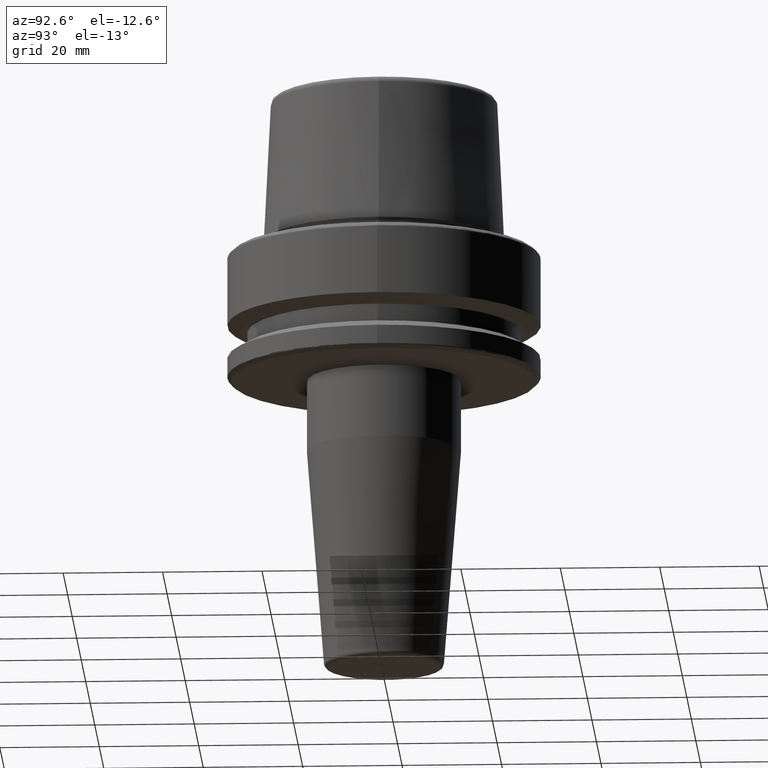
[diagram: clean part render]
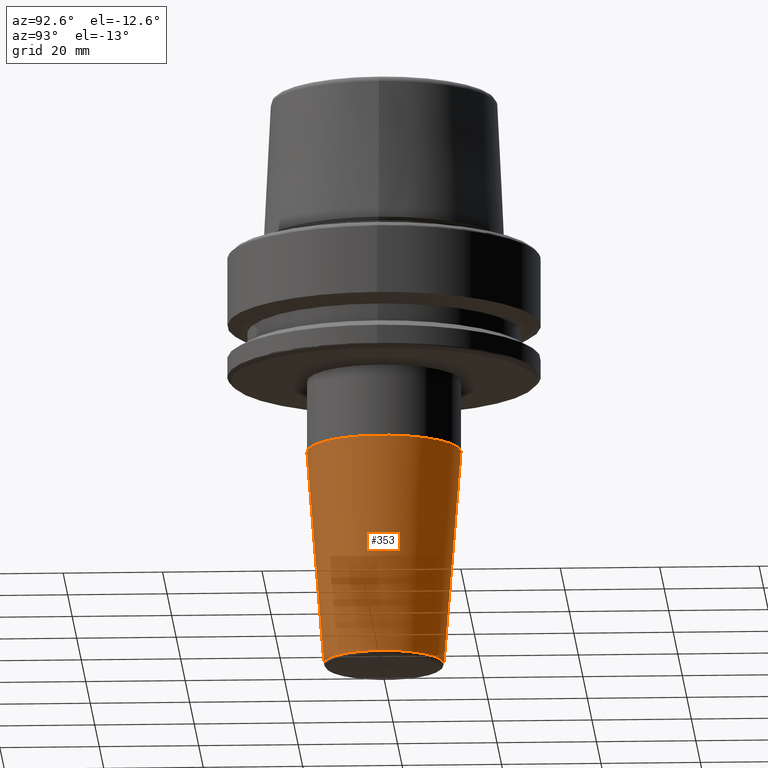
[diagram: same view with one face highlighted and labeled with its STEP entity id]
A machine part, auxiliary view. The second image highlights one B-rep face of the part: STEP entity #353.
In plain terms, the highlighted conical surface has half-angle 4.5 deg.
Its self-contained STEP definition (entity closure, byte-faithful):
#34 = DIRECTION ( 'NONE',  ( -0.0000000000000000000, 1.037836270463859800E-017, -1.000000000000000000 ) ) ;
#120 = CARTESIAN_POINT ( 'NONE',  ( 1.898202538678396800E-015, 15.49999999999999300, -40.52828342338443700 ) ) ;
#146 = CARTESIAN_POINT ( 'NONE',  ( 1.478458135476755100E-015, -12.07252684207491600, -84.07845909572785100 ) ) ;
#171 = DIRECTION ( 'NONE',  ( 9.608468044709201400E-018, 0.07845909572783753300, 0.9969173337331286300 ) ) ;
#175 = AXIS2_PLACEMENT_3D ( 'NONE', #796, #34, #988 ) ;
#180 = ORIENTED_EDGE ( 'NONE', *, *, #949, .T. ) ;
#192 = EDGE_CURVE ( 'NONE', #217, #716, #662, .T. ) ;
#217 = VERTEX_POINT ( 'NONE', #120 ) ;
#222 = CARTESIAN_POINT ( 'NONE',  ( 0.0000000000000000000, 1.507797948436721200E-016, -40.52828342338443700 ) ) ;
#260 = CARTESIAN_POINT ( 'NONE',  ( 0.0000000000000000000, -15.49999999999999300, -40.52828342338443700 ) ) ;
#302 = CIRCLE ( 'NONE', #175, 12.07252684207491600 ) ;
#353 = ADVANCED_FACE ( 'NONE', ( #1020 ), #673, .T. ) ;
#359 = CARTESIAN_POINT ( 'NONE',  ( 0.0000000000000000000, -15.49999999999999300, -40.52828342338443700 ) ) ;
#394 = DIRECTION ( 'NONE',  ( 0.0000000000000000000, 1.000000000000000000, 0.0000000000000000000 ) ) ;
#403 = AXIS2_PLACEMENT_3D ( 'NONE', #222, #1180, #705 ) ;
#551 = EDGE_LOOP ( 'NONE', ( #950, #180, #1239, #1183 ) ) ;
#582 = LINE ( 'NONE', #1162, #743 ) ;
#632 = AXIS2_PLACEMENT_3D ( 'NONE', #782, #1169, #394 ) ;
#662 = CIRCLE ( 'NONE', #632, 15.49999999999999300 ) ;
#673 = CONICAL_SURFACE ( 'NONE', #403, 15.49999999999999300, 0.07853981633973741700 ) ;
#705 = DIRECTION ( 'NONE',  ( 0.0000000000000000000, -1.000000000000000000, 0.0000000000000000000 ) ) ;
#708 = VERTEX_POINT ( 'NONE', #1028 ) ;
#716 = VERTEX_POINT ( 'NONE', #260 ) ;
#731 = DIRECTION ( 'NONE',  ( 0.0000000000000000000, -0.07845909572783756100, 0.9969173337331286300 ) ) ;
#743 = VECTOR ( 'NONE', #171, 999.9999999999998900 ) ;
#782 = CARTESIAN_POINT ( 'NONE',  ( 0.0000000000000000000, 1.507797948436721200E-016, -40.52828342338443700 ) ) ;
#796 = CARTESIAN_POINT ( 'NONE',  ( 0.0000000000000000000, 6.027593138219801900E-016, -84.07845909572785100 ) ) ;
#802 = LINE ( 'NONE', #359, #1056 ) ;
#916 = EDGE_CURVE ( 'NONE', #1229, #716, #802, .T. ) ;
#949 = EDGE_CURVE ( 'NONE', #708, #217, #582, .T. ) ;
#950 = ORIENTED_EDGE ( 'NONE', *, *, #1122, .F. ) ;
#988 = DIRECTION ( 'NONE',  ( 0.0000000000000000000, 1.000000000000000000, 0.0000000000000000000 ) ) ;
#1020 = FACE_OUTER_BOUND ( 'NONE', #551, .T. ) ;
#1028 = CARTESIAN_POINT ( 'NONE',  ( 0.0000000000000000000, 12.07252684207491600, -84.07845909572785100 ) ) ;
#1056 = VECTOR ( 'NONE', #731, 999.9999999999998900 ) ;
#1122 = EDGE_CURVE ( 'NONE', #708, #1229, #302, .T. ) ;
#1162 = CARTESIAN_POINT ( 'NONE',  ( 1.898202538678396800E-015, 15.49999999999999300, -40.52828342338443700 ) ) ;
#1169 = DIRECTION ( 'NONE',  ( -0.0000000000000000000, 1.037836270463859800E-017, -1.000000000000000000 ) ) ;
#1180 = DIRECTION ( 'NONE',  ( 0.0000000000000000000, -1.037836270463859800E-017, 1.000000000000000000 ) ) ;
#1183 = ORIENTED_EDGE ( 'NONE', *, *, #916, .F. ) ;
#1229 = VERTEX_POINT ( 'NONE', #146 ) ;
#1239 = ORIENTED_EDGE ( 'NONE', *, *, #192, .T. ) ;